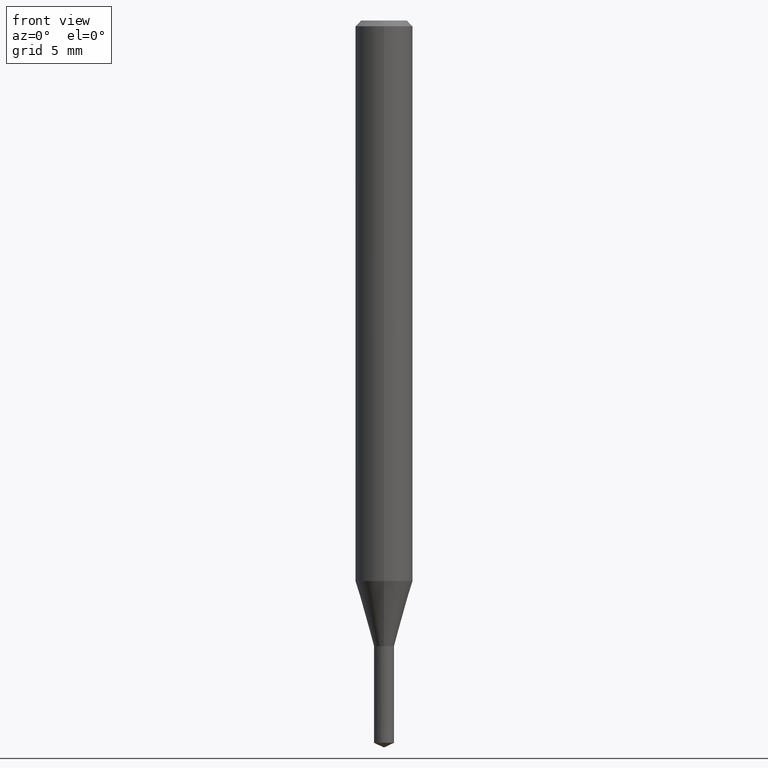
[diagram: clean part render]
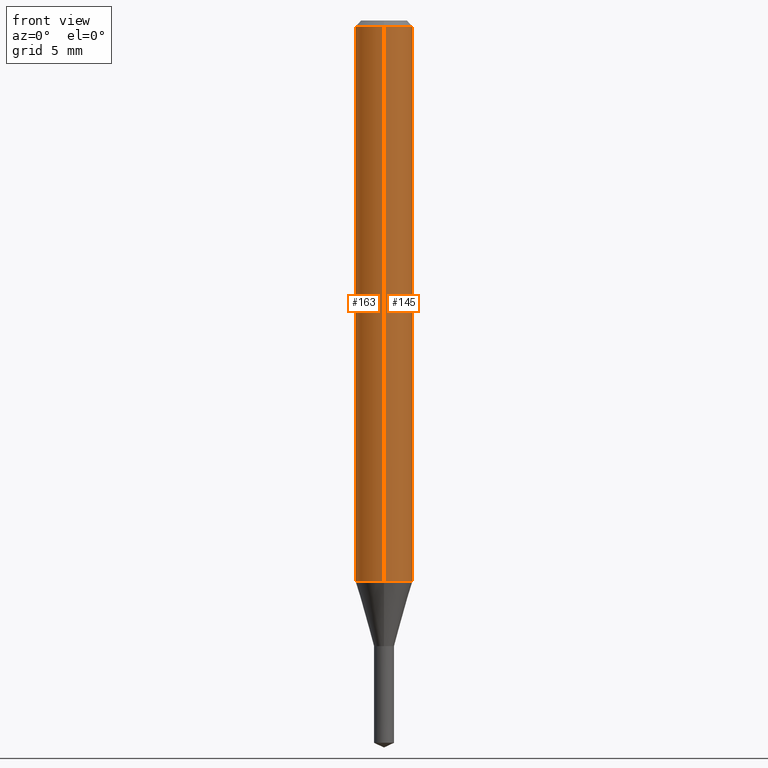
[diagram: same view with one multi-face feature highlighted, each face labeled with its STEP entity id]
A machine part, front view. The highlighted faces form ONE feature: a constant-radius fillet chain: 2 tangent blend faces with common blend radius 1.5 mm. The faces share edges in the B-rep.
Their STEP definitions:
[1] entity #145 (Cylinder):
#91=EDGE_CURVE('',#171,#153,#226,.T.);
#101=VERTEX_POINT('',#237);
#139=VERTEX_POINT('',#282);
#141=EDGE_CURVE('',#101,#139,#284,.T.);
#145=ADVANCED_FACE('',(#289),#290,.T.);
#153=VERTEX_POINT('',#298);
#157=EDGE_CURVE('',#139,#171,#302,.T.);
#161=EDGE_CURVE('',#101,#153,#306,.T.);
#171=VERTEX_POINT('',#318);
#226=LINE('',#369,#370);
#237=CARTESIAN_POINT('',(0.0,1.5,-0.300000000000001));
#282=CARTESIAN_POINT('',(0.0,1.5,-29.3));
#284=LINE('',#440,#441);
#289=FACE_OUTER_BOUND('',#446,.T.);
#290=CYLINDRICAL_SURFACE('',#447,1.5);
#298=CARTESIAN_POINT('',(1.83690953073357E-016,-1.5,-0.300000000000001));
#302=CIRCLE('',#463,1.5);
#306=CIRCLE('',#469,1.5);
#318=CARTESIAN_POINT('',(1.83690953073357E-016,-1.5,-29.3));
#369=CARTESIAN_POINT('',(1.83690953073357E-016,-1.5,-14.8));
#370=VECTOR('',#535,1.0);
#440=CARTESIAN_POINT('',(-1.83690953073357E-016,1.5,-14.8));
#441=VECTOR('',#611,1.0);
#446=EDGE_LOOP('',(#621,#622,#623,#624));
#447=AXIS2_PLACEMENT_3D('',#625,#626,#627);
#463=AXIS2_PLACEMENT_3D('',#632,#633,#634);
#469=AXIS2_PLACEMENT_3D('',#638,#639,#640);
#535=DIRECTION('',(-0.0,-0.0,1.0));
#611=DIRECTION('',(0.0,0.0,-1.0));
#621=ORIENTED_EDGE('',*,*,#141,.F.);
#622=ORIENTED_EDGE('',*,*,#161,.T.);
#623=ORIENTED_EDGE('',*,*,#91,.F.);
#624=ORIENTED_EDGE('',*,*,#157,.F.);
#625=CARTESIAN_POINT('',(0.0,0.0,-14.8));
#626=DIRECTION('',(-0.0,-0.0,1.0));
#627=DIRECTION('',(0.0,1.0,0.0));
#632=CARTESIAN_POINT('',(0.0,0.0,-29.3));
#633=DIRECTION('',(0.0,0.0,-1.0));
#634=DIRECTION('',(0.0,1.0,0.0));
#638=CARTESIAN_POINT('',(0.0,0.0,-0.300000000000001));
#639=DIRECTION('',(0.0,0.0,-1.0));
#640=DIRECTION('',(0.0,1.0,0.0));
[2] entity #163 (Cylinder):
#91=EDGE_CURVE('',#171,#153,#226,.T.);
#101=VERTEX_POINT('',#237);
#111=EDGE_CURVE('',#171,#139,#249,.T.);
#139=VERTEX_POINT('',#282);
#141=EDGE_CURVE('',#101,#139,#284,.T.);
#153=VERTEX_POINT('',#298);
#163=ADVANCED_FACE('',(#308),#309,.T.);
#171=VERTEX_POINT('',#318);
#195=EDGE_CURVE('',#153,#101,#343,.T.);
#226=LINE('',#369,#370);
#237=CARTESIAN_POINT('',(0.0,1.5,-0.300000000000001));
#249=CIRCLE('',#399,1.5);
#282=CARTESIAN_POINT('',(0.0,1.5,-29.3));
#284=LINE('',#440,#441);
#298=CARTESIAN_POINT('',(1.83690953073357E-016,-1.5,-0.300000000000001));
#308=FACE_OUTER_BOUND('',#471,.T.);
#309=CYLINDRICAL_SURFACE('',#472,1.5);
#318=CARTESIAN_POINT('',(1.83690953073357E-016,-1.5,-29.3));
#343=CIRCLE('',#519,1.5);
#369=CARTESIAN_POINT('',(1.83690953073357E-016,-1.5,-14.8));
#370=VECTOR('',#535,1.0);
#399=AXIS2_PLACEMENT_3D('',#564,#565,#566);
#440=CARTESIAN_POINT('',(-1.83690953073357E-016,1.5,-14.8));
#441=VECTOR('',#611,1.0);
#471=EDGE_LOOP('',(#642,#643,#644,#645));
#472=AXIS2_PLACEMENT_3D('',#646,#647,#648);
#519=AXIS2_PLACEMENT_3D('',#683,#684,#685);
#535=DIRECTION('',(-0.0,-0.0,1.0));
#564=CARTESIAN_POINT('',(0.0,0.0,-29.3));
#565=DIRECTION('',(0.0,0.0,-1.0));
#566=DIRECTION('',(0.0,1.0,0.0));
#611=DIRECTION('',(0.0,0.0,-1.0));
#642=ORIENTED_EDGE('',*,*,#141,.T.);
#643=ORIENTED_EDGE('',*,*,#111,.F.);
#644=ORIENTED_EDGE('',*,*,#91,.T.);
#645=ORIENTED_EDGE('',*,*,#195,.T.);
#646=CARTESIAN_POINT('',(0.0,0.0,-14.8));
#647=DIRECTION('',(-0.0,-0.0,1.0));
#648=DIRECTION('',(0.0,1.0,0.0));
#683=CARTESIAN_POINT('',(0.0,0.0,-0.300000000000001));
#684=DIRECTION('',(0.0,0.0,-1.0));
#685=DIRECTION('',(0.0,1.0,0.0));